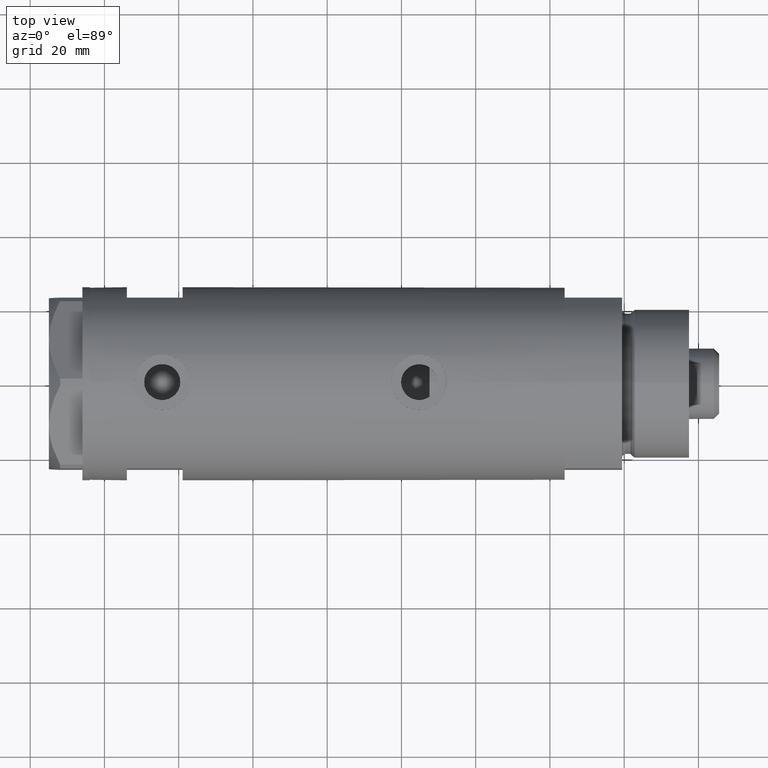
[diagram: clean part render]
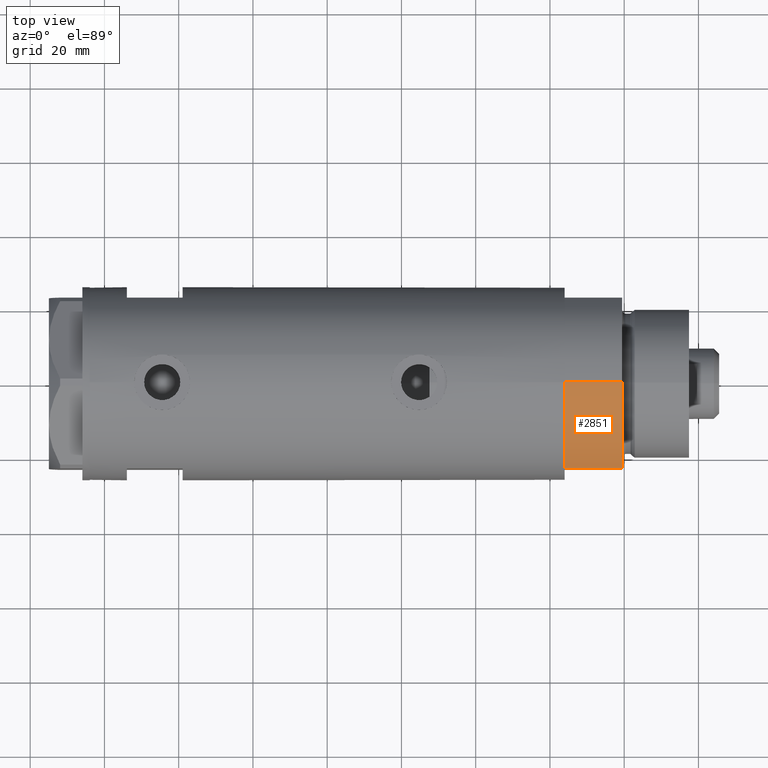
[diagram: same view with one face highlighted and labeled with its STEP entity id]
A machine part, top view. The second image highlights one B-rep face of the part: STEP entity #2851.
In plain terms, the highlighted cylindrical surface (partial cylindrical patch) has radius 26 mm, axis along (-1, -0, 0).
Its self-contained STEP definition (entity closure, byte-faithful):
#436 = AXIS2_PLACEMENT_3D ( 'NONE', #543, #3258, #2150 ) ;
#543 = CARTESIAN_POINT ( 'NONE',  ( 0.000000000000000000, 0.000000000000000000, 0.000000000000000000 ) ) ;
#660 = ORIENTED_EDGE ( 'NONE', *, *, #3746, .F. ) ;
#684 = CARTESIAN_POINT ( 'NONE',  ( 0.000000000000000000, 0.000000000000000000, 15.50000000000000000 ) ) ;
#784 = LINE ( 'NONE', #2895, #2211 ) ;
#856 = LINE ( 'NONE', #2464, #3089 ) ;
#864 = CIRCLE ( 'NONE', #3396, 26.00000000000000355 ) ;
#933 = VERTEX_POINT ( 'NONE', #3267 ) ;
#935 = CARTESIAN_POINT ( 'NONE',  ( -12.12435565298215501, -22.99999999999999645, 0.000000000000000000 ) ) ;
#1108 = DIRECTION ( 'NONE',  ( -0.000000000000000000, -0.000000000000000000, -1.000000000000000000 ) ) ;
#1129 = DIRECTION ( 'NONE',  ( 0.000000000000000000, 0.000000000000000000, 1.000000000000000000 ) ) ;
#1241 = DIRECTION ( 'NONE',  ( -0.000000000000000000, -0.000000000000000000, -1.000000000000000000 ) ) ;
#1335 = ORIENTED_EDGE ( 'NONE', *, *, #2212, .T. ) ;
#1356 = CIRCLE ( 'NONE', #436, 26.00000000000000355 ) ;
#1474 = CARTESIAN_POINT ( 'NONE',  ( -12.12435565298215323, -22.99999999999999645, 15.50000000000000000 ) ) ;
#1487 = EDGE_LOOP ( 'NONE', ( #660, #4696, #1335, #2093 ) ) ;
#1530 = CARTESIAN_POINT ( 'NONE',  ( -26.00000000000000355, 0.000000000000000000, 0.000000000000000000 ) ) ;
#1541 = FACE_OUTER_BOUND ( 'NONE', #1487, .T. ) ;
#2093 = ORIENTED_EDGE ( 'NONE', *, *, #4628, .T. ) ;
#2095 = VERTEX_POINT ( 'NONE', #935 ) ;
#2150 = DIRECTION ( 'NONE',  ( 1.000000000000000000, 0.000000000000000000, 0.000000000000000000 ) ) ;
#2211 = VECTOR ( 'NONE', #1241, 1000.000000000000000 ) ;
#2212 = EDGE_CURVE ( 'NONE', #4533, #2095, #1356, .T. ) ;
#2364 = CARTESIAN_POINT ( 'NONE',  ( 0.000000000000000000, 0.000000000000000000, 15.50000000000000000 ) ) ;
#2464 = CARTESIAN_POINT ( 'NONE',  ( -12.12435565298215145, -22.99999999999999645, 0.000000000000000000 ) ) ;
#2851 = ADVANCED_FACE ( 'NONE', ( #1541 ), #3136, .T. ) ;
#2895 = CARTESIAN_POINT ( 'NONE',  ( -26.00000000000000355, 0.000000000000000000, 15.50000000000000000 ) ) ;
#3089 = VECTOR ( 'NONE', #4063, 1000.000000000000000 ) ;
#3136 = CYLINDRICAL_SURFACE ( 'NONE', #3546, 26.00000000000000355 ) ;
#3258 = DIRECTION ( 'NONE',  ( 0.000000000000000000, 0.000000000000000000, 1.000000000000000000 ) ) ;
#3267 = CARTESIAN_POINT ( 'NONE',  ( -26.00000000000000355, 0.000000000000000000, 15.50000000000000000 ) ) ;
#3396 = AXIS2_PLACEMENT_3D ( 'NONE', #2364, #1129, #3963 ) ;
#3529 = DIRECTION ( 'NONE',  ( -1.000000000000000000, 0.000000000000000000, 0.000000000000000000 ) ) ;
#3546 = AXIS2_PLACEMENT_3D ( 'NONE', #684, #1108, #3529 ) ;
#3746 = EDGE_CURVE ( 'NONE', #933, #4483, #864, .T. ) ;
#3954 = EDGE_CURVE ( 'NONE', #933, #4533, #784, .T. ) ;
#3963 = DIRECTION ( 'NONE',  ( 1.000000000000000000, 0.000000000000000000, 0.000000000000000000 ) ) ;
#4063 = DIRECTION ( 'NONE',  ( -0.000000000000000000, -0.000000000000000000, 1.000000000000000000 ) ) ;
#4483 = VERTEX_POINT ( 'NONE', #1474 ) ;
#4533 = VERTEX_POINT ( 'NONE', #1530 ) ;
#4628 = EDGE_CURVE ( 'NONE', #2095, #4483, #856, .T. ) ;
#4696 = ORIENTED_EDGE ( 'NONE', *, *, #3954, .T. ) ;